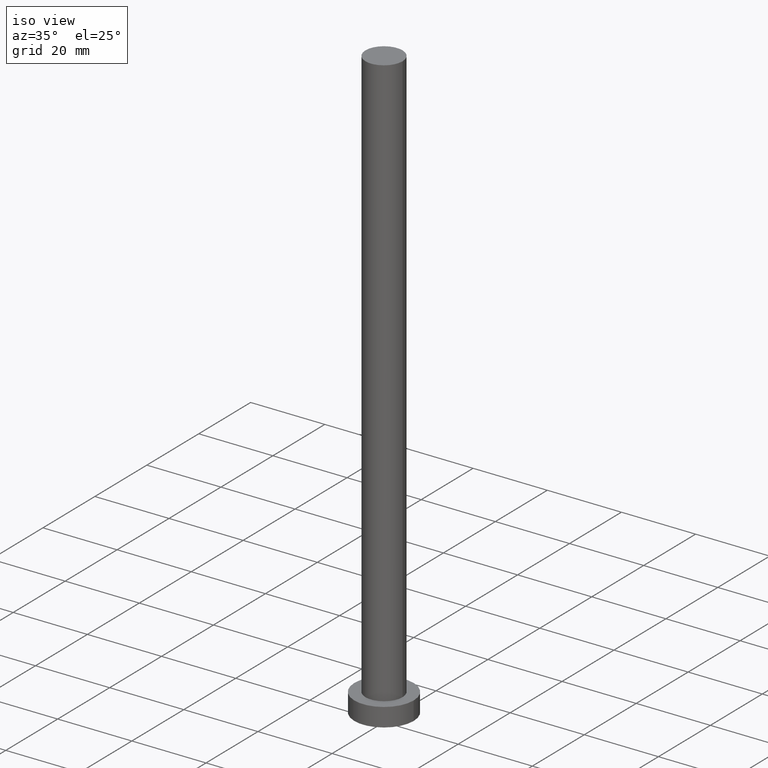
[diagram: clean part render]
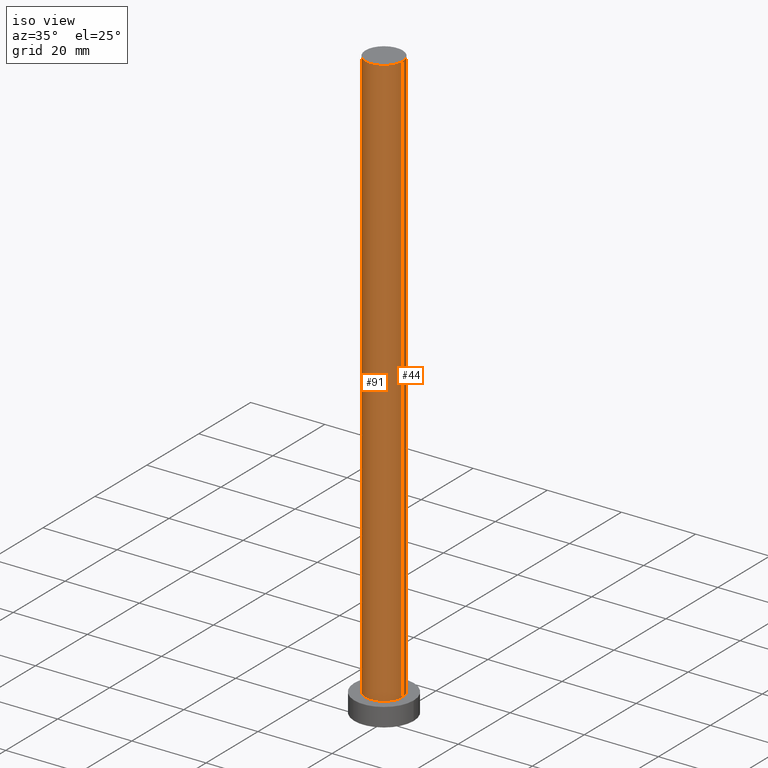
[diagram: same view with one multi-face feature highlighted, each face labeled with its STEP entity id]
A machine part, iso view. The highlighted faces form ONE feature: a constant-radius fillet chain: 2 tangent blend faces with common blend radius 5 mm. The faces share edges in the B-rep.
Their STEP definitions:
[1] entity #44 (Cylinder):
#4 = CARTESIAN_POINT ( 'NONE',  ( 5.000000000000000000, 6.123233995736766282E-16, 160.0000000000000000 ) ) ;
#7 = FACE_OUTER_BOUND ( 'NONE', #87, .T. ) ;
#11 = CARTESIAN_POINT ( 'NONE',  ( 5.000000000000000000, 6.123233995736766282E-16, 5.000000000000000000 ) ) ;
#32 = CARTESIAN_POINT ( 'NONE',  ( 0.000000000000000000, 0.000000000000000000, 160.0000000000000000 ) ) ;
#43 = AXIS2_PLACEMENT_3D ( 'NONE', #32, #249, #200 ) ;
#44 = ADVANCED_FACE ( 'NONE', ( #7 ), #211, .T. ) ;
#47 = LINE ( 'NONE', #97, #49 ) ;
#49 = VECTOR ( 'NONE', #66, 1000.000000000000000 ) ;
#54 = DIRECTION ( 'NONE',  ( 1.000000000000000000, 0.000000000000000000, 0.000000000000000000 ) ) ;
#58 = EDGE_CURVE ( 'NONE', #198, #59, #122, .T. ) ;
#59 = VERTEX_POINT ( 'NONE', #77 ) ;
#60 = VECTOR ( 'NONE', #226, 1000.000000000000000 ) ;
#66 = DIRECTION ( 'NONE',  ( -0.000000000000000000, -0.000000000000000000, -1.000000000000000000 ) ) ;
#68 = ORIENTED_EDGE ( 'NONE', *, *, #181, .F. ) ;
#71 = DIRECTION ( 'NONE',  ( -1.000000000000000000, 0.000000000000000000, 0.000000000000000000 ) ) ;
#77 = CARTESIAN_POINT ( 'NONE',  ( -5.000000000000000000, 0.000000000000000000, 160.0000000000000000 ) ) ;
#83 = CARTESIAN_POINT ( 'NONE',  ( 0.000000000000000000, 0.000000000000000000, 160.0000000000000000 ) ) ;
#86 = CARTESIAN_POINT ( 'NONE',  ( -5.000000000000000000, 0.000000000000000000, 5.000000000000000000 ) ) ;
#87 = EDGE_LOOP ( 'NONE', ( #157, #172, #133, #68 ) ) ;
#95 = LINE ( 'NONE', #4, #60 ) ;
#97 = CARTESIAN_POINT ( 'NONE',  ( -5.000000000000000000, 0.000000000000000000, 160.0000000000000000 ) ) ;
#122 = CIRCLE ( 'NONE', #43, 5.000000000000000000 ) ;
#131 = EDGE_CURVE ( 'NONE', #154, #161, #213, .T. ) ;
#132 = DIRECTION ( 'NONE',  ( 0.000000000000000000, 0.000000000000000000, 1.000000000000000000 ) ) ;
#133 = ORIENTED_EDGE ( 'NONE', *, *, #131, .T. ) ;
#153 = CARTESIAN_POINT ( 'NONE',  ( 0.000000000000000000, 0.000000000000000000, 5.000000000000000000 ) ) ;
#154 = VERTEX_POINT ( 'NONE', #11 ) ;
#157 = ORIENTED_EDGE ( 'NONE', *, *, #58, .F. ) ;
#161 = VERTEX_POINT ( 'NONE', #86 ) ;
#164 = AXIS2_PLACEMENT_3D ( 'NONE', #83, #246, #71 ) ;
#172 = ORIENTED_EDGE ( 'NONE', *, *, #175, .T. ) ;
#175 = EDGE_CURVE ( 'NONE', #198, #154, #95, .T. ) ;
#181 = EDGE_CURVE ( 'NONE', #59, #161, #47, .T. ) ;
#183 = CARTESIAN_POINT ( 'NONE',  ( 5.000000000000000000, 6.123233995736766282E-16, 160.0000000000000000 ) ) ;
#198 = VERTEX_POINT ( 'NONE', #183 ) ;
#200 = DIRECTION ( 'NONE',  ( 1.000000000000000000, 0.000000000000000000, 0.000000000000000000 ) ) ;
#211 = CYLINDRICAL_SURFACE ( 'NONE', #164, 5.000000000000000000 ) ;
#213 = CIRCLE ( 'NONE', #255, 5.000000000000000000 ) ;
#226 = DIRECTION ( 'NONE',  ( -0.000000000000000000, -0.000000000000000000, -1.000000000000000000 ) ) ;
#246 = DIRECTION ( 'NONE',  ( -0.000000000000000000, -0.000000000000000000, -1.000000000000000000 ) ) ;
#249 = DIRECTION ( 'NONE',  ( 0.000000000000000000, 0.000000000000000000, 1.000000000000000000 ) ) ;
#255 = AXIS2_PLACEMENT_3D ( 'NONE', #153, #132, #54 ) ;
[2] entity #91 (Cylinder):
#4 = CARTESIAN_POINT ( 'NONE',  ( 5.000000000000000000, 6.123233995736766282E-16, 160.0000000000000000 ) ) ;
#9 = DIRECTION ( 'NONE',  ( 1.000000000000000000, 0.000000000000000000, 0.000000000000000000 ) ) ;
#11 = CARTESIAN_POINT ( 'NONE',  ( 5.000000000000000000, 6.123233995736766282E-16, 5.000000000000000000 ) ) ;
#13 = EDGE_CURVE ( 'NONE', #59, #198, #152, .T. ) ;
#21 = DIRECTION ( 'NONE',  ( 1.000000000000000000, 0.000000000000000000, 0.000000000000000000 ) ) ;
#23 = CIRCLE ( 'NONE', #64, 5.000000000000000000 ) ;
#25 = FACE_OUTER_BOUND ( 'NONE', #80, .T. ) ;
#39 = AXIS2_PLACEMENT_3D ( 'NONE', #234, #128, #111 ) ;
#47 = LINE ( 'NONE', #97, #49 ) ;
#48 = CARTESIAN_POINT ( 'NONE',  ( 0.000000000000000000, 0.000000000000000000, 5.000000000000000000 ) ) ;
#49 = VECTOR ( 'NONE', #66, 1000.000000000000000 ) ;
#59 = VERTEX_POINT ( 'NONE', #77 ) ;
#60 = VECTOR ( 'NONE', #226, 1000.000000000000000 ) ;
#64 = AXIS2_PLACEMENT_3D ( 'NONE', #48, #185, #21 ) ;
#66 = DIRECTION ( 'NONE',  ( -0.000000000000000000, -0.000000000000000000, -1.000000000000000000 ) ) ;
#77 = CARTESIAN_POINT ( 'NONE',  ( -5.000000000000000000, 0.000000000000000000, 160.0000000000000000 ) ) ;
#80 = EDGE_LOOP ( 'NONE', ( #89, #217, #202, #123 ) ) ;
#86 = CARTESIAN_POINT ( 'NONE',  ( -5.000000000000000000, 0.000000000000000000, 5.000000000000000000 ) ) ;
#89 = ORIENTED_EDGE ( 'NONE', *, *, #175, .F. ) ;
#91 = ADVANCED_FACE ( 'NONE', ( #25 ), #106, .T. ) ;
#95 = LINE ( 'NONE', #4, #60 ) ;
#97 = CARTESIAN_POINT ( 'NONE',  ( -5.000000000000000000, 0.000000000000000000, 160.0000000000000000 ) ) ;
#106 = CYLINDRICAL_SURFACE ( 'NONE', #39, 5.000000000000000000 ) ;
#111 = DIRECTION ( 'NONE',  ( -1.000000000000000000, 0.000000000000000000, 0.000000000000000000 ) ) ;
#119 = DIRECTION ( 'NONE',  ( 0.000000000000000000, 0.000000000000000000, 1.000000000000000000 ) ) ;
#123 = ORIENTED_EDGE ( 'NONE', *, *, #187, .T. ) ;
#128 = DIRECTION ( 'NONE',  ( -0.000000000000000000, -0.000000000000000000, -1.000000000000000000 ) ) ;
#152 = CIRCLE ( 'NONE', #190, 5.000000000000000000 ) ;
#154 = VERTEX_POINT ( 'NONE', #11 ) ;
#161 = VERTEX_POINT ( 'NONE', #86 ) ;
#175 = EDGE_CURVE ( 'NONE', #198, #154, #95, .T. ) ;
#181 = EDGE_CURVE ( 'NONE', #59, #161, #47, .T. ) ;
#183 = CARTESIAN_POINT ( 'NONE',  ( 5.000000000000000000, 6.123233995736766282E-16, 160.0000000000000000 ) ) ;
#185 = DIRECTION ( 'NONE',  ( 0.000000000000000000, 0.000000000000000000, 1.000000000000000000 ) ) ;
#187 = EDGE_CURVE ( 'NONE', #161, #154, #23, .T. ) ;
#190 = AXIS2_PLACEMENT_3D ( 'NONE', #229, #119, #9 ) ;
#198 = VERTEX_POINT ( 'NONE', #183 ) ;
#202 = ORIENTED_EDGE ( 'NONE', *, *, #181, .T. ) ;
#217 = ORIENTED_EDGE ( 'NONE', *, *, #13, .F. ) ;
#226 = DIRECTION ( 'NONE',  ( -0.000000000000000000, -0.000000000000000000, -1.000000000000000000 ) ) ;
#229 = CARTESIAN_POINT ( 'NONE',  ( 0.000000000000000000, 0.000000000000000000, 160.0000000000000000 ) ) ;
#234 = CARTESIAN_POINT ( 'NONE',  ( 0.000000000000000000, 0.000000000000000000, 160.0000000000000000 ) ) ;